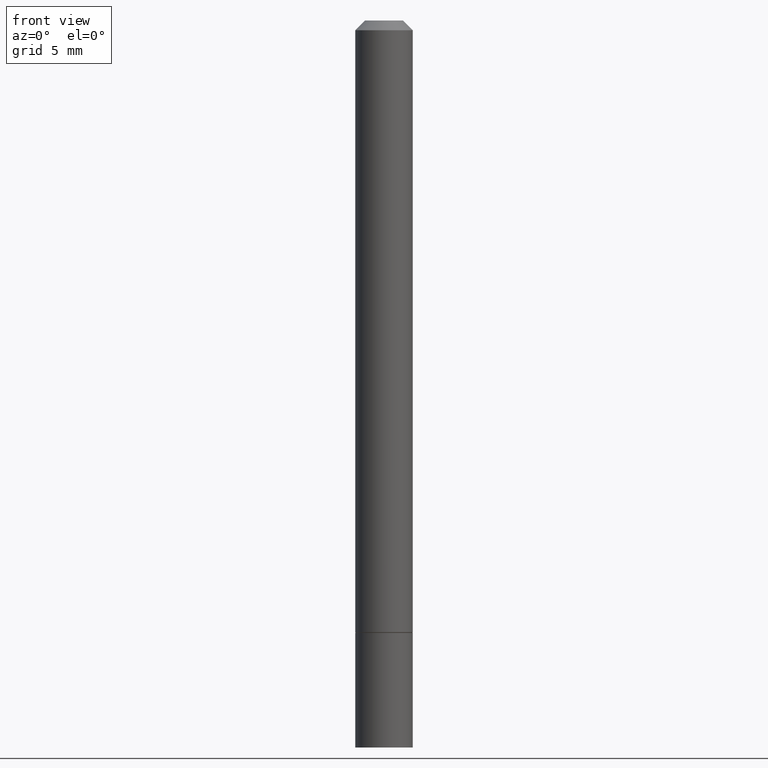
[diagram: clean part render]
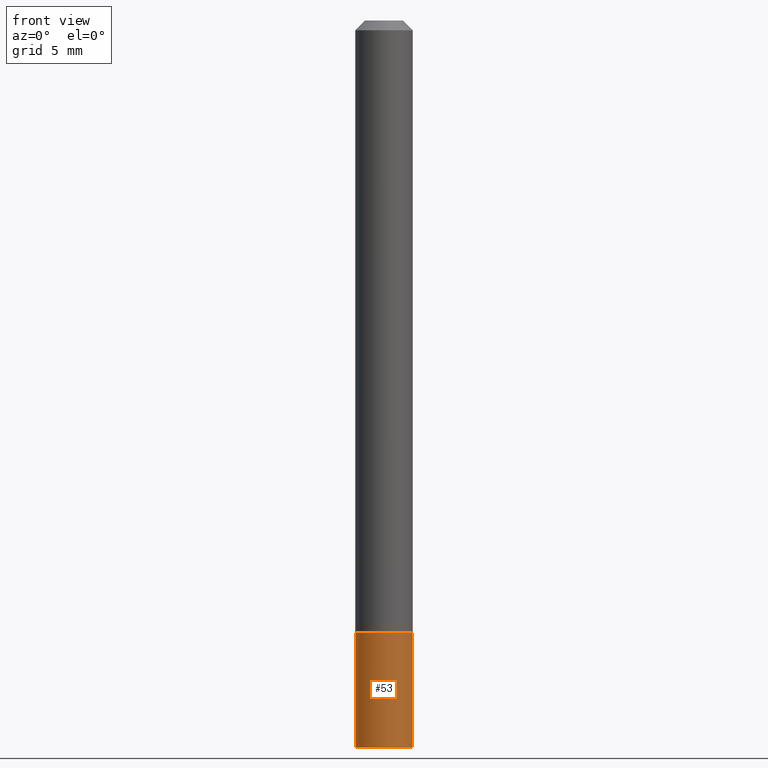
[diagram: same view with one face highlighted and labeled with its STEP entity id]
A machine part, front view. The second image highlights one B-rep face of the part: STEP entity #53.
In plain terms, the highlighted cylindrical surface (edge-blend (fillet) strip) has radius 1.4999 mm, axis along (-0, 0, 1).
Its self-contained STEP definition (entity closure, byte-faithful):
#8 = EDGE_CURVE ( 'NONE', #132, #136, #366, .T. ) ;
#24 = ORIENTED_EDGE ( 'NONE', *, *, #35, .F. ) ;
#31 = DIRECTION ( 'NONE',  ( -2.445468806185136597E-29, 3.491481338843145583E-15, 1.000000000000000000 ) ) ;
#35 = EDGE_CURVE ( 'NONE', #152, #106, #146, .T. ) ;
#42 = AXIS2_PLACEMENT_3D ( 'NONE', #287, #341, #255 ) ;
#46 = CARTESIAN_POINT ( 'NONE',  ( 0.05905000000000001914, -4.811261284925853162E-15, -1.259899999999999798 ) ) ;
#48 = CARTESIAN_POINT ( 'NONE',  ( -0.05905000000000001914, -4.391685799459515247E-15, -1.259899999999999798 ) ) ;
#53 = ADVANCED_FACE ( 'NONE', ( #94 ), #347, .T. ) ;
#75 = LINE ( 'NONE', #161, #265 ) ;
#76 = DIRECTION ( 'NONE',  ( -2.445468806185136877E-29, 3.491481338843145188E-15, 1.000000000000000000 ) ) ;
#78 = CARTESIAN_POINT ( 'NONE',  ( 0.05905000000000001914, -5.635949177160603791E-15, -1.496099999999999985 ) ) ;
#79 = VECTOR ( 'NONE', #83, 39.37007874015748143 ) ;
#82 = ORIENTED_EDGE ( 'NONE', *, *, #8, .T. ) ;
#83 = DIRECTION ( 'NONE',  ( -2.445468806185136877E-29, 3.491481338843145188E-15, 1.000000000000000000 ) ) ;
#94 = FACE_OUTER_BOUND ( 'NONE', #140, .T. ) ;
#106 = VERTEX_POINT ( 'NONE', #46 ) ;
#110 = ORIENTED_EDGE ( 'NONE', *, *, #215, .T. ) ;
#112 = DIRECTION ( 'NONE',  ( 1.000000000000000000, -6.982962677686270655E-15, 0.000000000000000000 ) ) ;
#132 = VERTEX_POINT ( 'NONE', #214 ) ;
#134 = EDGE_CURVE ( 'NONE', #132, #152, #75, .T. ) ;
#136 = VERTEX_POINT ( 'NONE', #78 ) ;
#139 = CARTESIAN_POINT ( 'NONE',  ( 0.05905000000000001914, -4.123439461173741806E-16, 2.879382386107500921E-30 ) ) ;
#140 = EDGE_LOOP ( 'NONE', ( #185, #82, #110, #24 ) ) ;
#146 = CIRCLE ( 'NONE', #253, 0.05905000000000001914 ) ;
#152 = VERTEX_POINT ( 'NONE', #48 ) ;
#161 = CARTESIAN_POINT ( 'NONE',  ( -0.05905000000000001914, 4.195754854663392958E-16, -2.904631170795522943E-30 ) ) ;
#185 = ORIENTED_EDGE ( 'NONE', *, *, #134, .F. ) ;
#214 = CARTESIAN_POINT ( 'NONE',  ( -0.05905000000000001914, -4.391685799459515247E-15, -1.496099999999999985 ) ) ;
#215 = EDGE_CURVE ( 'NONE', #136, #106, #316, .T. ) ;
#227 = CARTESIAN_POINT ( 'NONE',  ( 0.000000000000000000, 0.000000000000000000, 0.000000000000000000 ) ) ;
#253 = AXIS2_PLACEMENT_3D ( 'NONE', #315, #31, #112 ) ;
#255 = DIRECTION ( 'NONE',  ( 1.000000000000000000, -6.982962677686270655E-15, 0.000000000000000000 ) ) ;
#258 = AXIS2_PLACEMENT_3D ( 'NONE', #227, #348, #351 ) ;
#265 = VECTOR ( 'NONE', #76, 39.37007874015748143 ) ;
#287 = CARTESIAN_POINT ( 'NONE',  ( 3.658665880933582389E-29, -5.223605231043229660E-15, -1.496099999999999985 ) ) ;
#315 = CARTESIAN_POINT ( 'NONE',  ( 3.081046148912652946E-29, -4.398917338808479031E-15, -1.259899999999999798 ) ) ;
#316 = LINE ( 'NONE', #139, #79 ) ;
#341 = DIRECTION ( 'NONE',  ( -2.445468806185136597E-29, 3.491481338843145583E-15, 1.000000000000000000 ) ) ;
#347 = CYLINDRICAL_SURFACE ( 'NONE', #258, 0.05905000000000001914 ) ;
#348 = DIRECTION ( 'NONE',  ( -2.445468806185136597E-29, 3.491481338843145583E-15, 1.000000000000000000 ) ) ;
#351 = DIRECTION ( 'NONE',  ( 1.000000000000000000, -6.982962677686266711E-15, 4.876176775795935793E-29 ) ) ;
#366 = CIRCLE ( 'NONE', #42, 0.05905000000000001914 ) ;